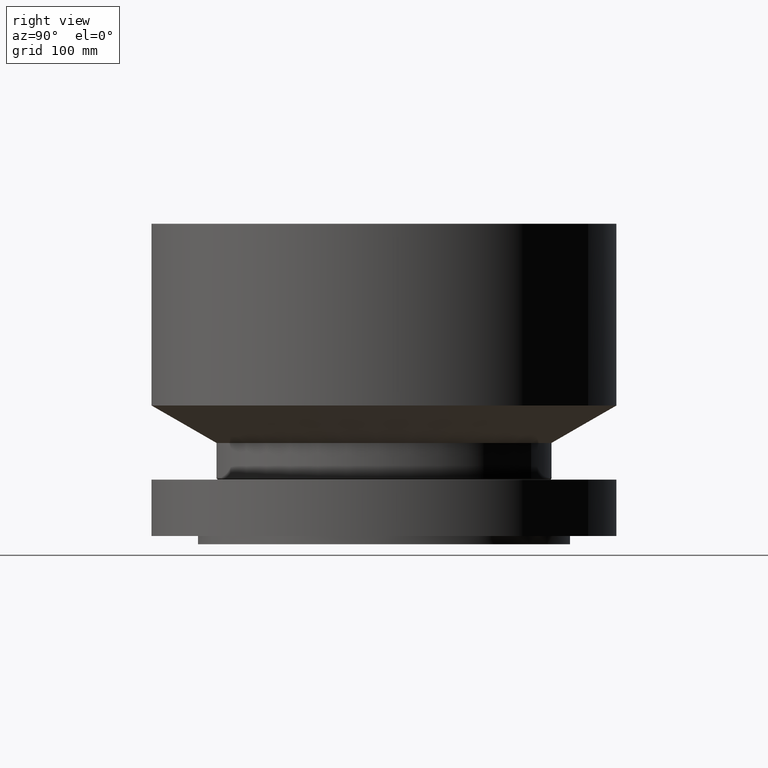
[diagram: clean part render]
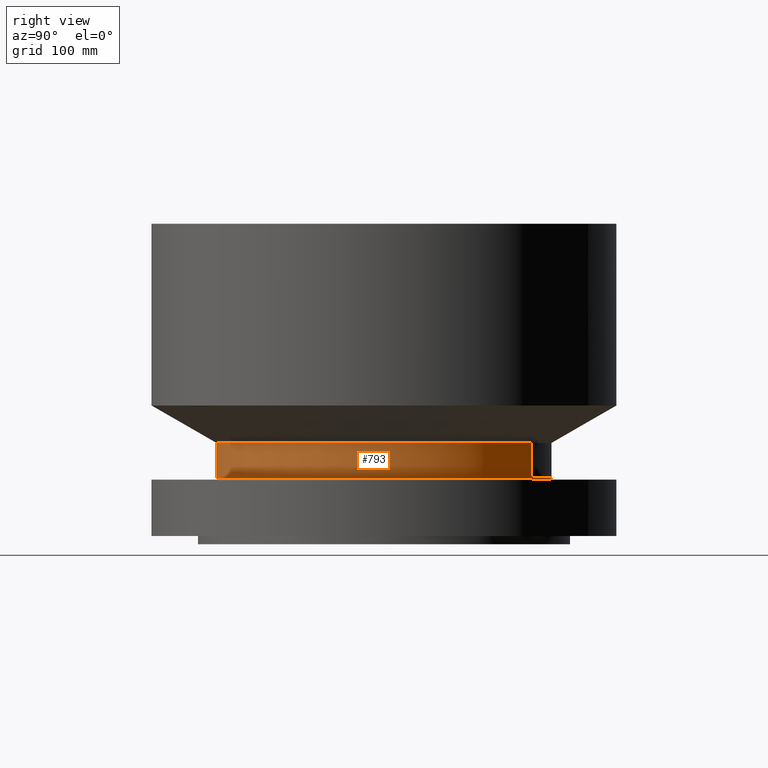
[diagram: same view with one face highlighted and labeled with its STEP entity id]
A machine part, right view. The second image highlights one B-rep face of the part: STEP entity #793.
In plain terms, the highlighted cylindrical surface (partial cylindrical patch) has radius 160.274 mm, axis along (0, 0, -1).
Its self-contained STEP definition (entity closure, byte-faithful):
#734=AXIS2_PLACEMENT_3D('Circle Axis2P3D',#732,#733,$) ;
#766=AXIS2_PLACEMENT_3D('Cylinder Axis2P3D',#763,#764,#765) ;
#777=AXIS2_PLACEMENT_3D('Circle Axis2P3D',#775,#776,$) ;
#729=CARTESIAN_POINT('Vertex',(3.0251751486,5.53754596555,2.16098076212)) ;
#732=CARTESIAN_POINT('Axis2P3D Location',(0.,0.,2.16098076212)) ;
#736=CARTESIAN_POINT('Vertex',(-3.0251751486,-5.53754596555,2.16098076212)) ;
#763=CARTESIAN_POINT('Axis2P3D Location',(0.,0.,5.71850000002)) ;
#768=CARTESIAN_POINT('Line Origine',(3.0251751486,5.53754596555,2.83049038107)) ;
#772=CARTESIAN_POINT('Vertex',(3.0251751486,5.53754596555,3.50000000001)) ;
#775=CARTESIAN_POINT('Axis2P3D Location',(0.,0.,3.50000000001)) ;
#779=CARTESIAN_POINT('Vertex',(-3.0251751486,-5.53754596555,3.50000000001)) ;
#782=CARTESIAN_POINT('Line Origine',(-3.0251751486,-5.53754596555,2.83049038107)) ;
#733=DIRECTION('Axis2P3D Direction',(-0.,0.,0.0393700787402)) ;
#764=DIRECTION('Axis2P3D Direction',(0.,0.,-0.0393700787402)) ;
#765=DIRECTION('Axis2P3D XDirection',(-0.0188750212049,-0.0345504945626,0.)) ;
#769=DIRECTION('Vector Direction',(0.,0.,-0.0393700787402)) ;
#776=DIRECTION('Axis2P3D Direction',(0.,0.,-0.0393700787402)) ;
#783=DIRECTION('Vector Direction',(0.,0.,-0.0393700787402)) ;
#770=VECTOR('Line Direction',#769,0.0393700787402) ;
#784=VECTOR('Line Direction',#783,0.0393700787402) ;
#788=ORIENTED_EDGE('',*,*,#738,.F.) ;
#789=ORIENTED_EDGE('',*,*,#774,.T.) ;
#790=ORIENTED_EDGE('',*,*,#781,.T.) ;
#791=ORIENTED_EDGE('',*,*,#786,.F.) ;
#793=ADVANCED_FACE('PartBody',(#792),#767,.T.) ;
#735=CIRCLE('generated circle',#734,6.31000000003) ;
#778=CIRCLE('generated circle',#777,6.31000000003) ;
#767=CYLINDRICAL_SURFACE('generated cylinder',#766,6.31000000003) ;
#738=EDGE_CURVE('',#730,#737,#735,.F.) ;
#774=EDGE_CURVE('',#730,#773,#771,.F.) ;
#781=EDGE_CURVE('',#773,#780,#778,.T.) ;
#786=EDGE_CURVE('',#737,#780,#785,.F.) ;
#787=EDGE_LOOP('',(#788,#789,#790,#791)) ;
#792=FACE_OUTER_BOUND('',#787,.T.) ;
#771=LINE('Line',#768,#770) ;
#785=LINE('Line',#782,#784) ;
#730=VERTEX_POINT('',#729) ;
#737=VERTEX_POINT('',#736) ;
#773=VERTEX_POINT('',#772) ;
#780=VERTEX_POINT('',#779) ;